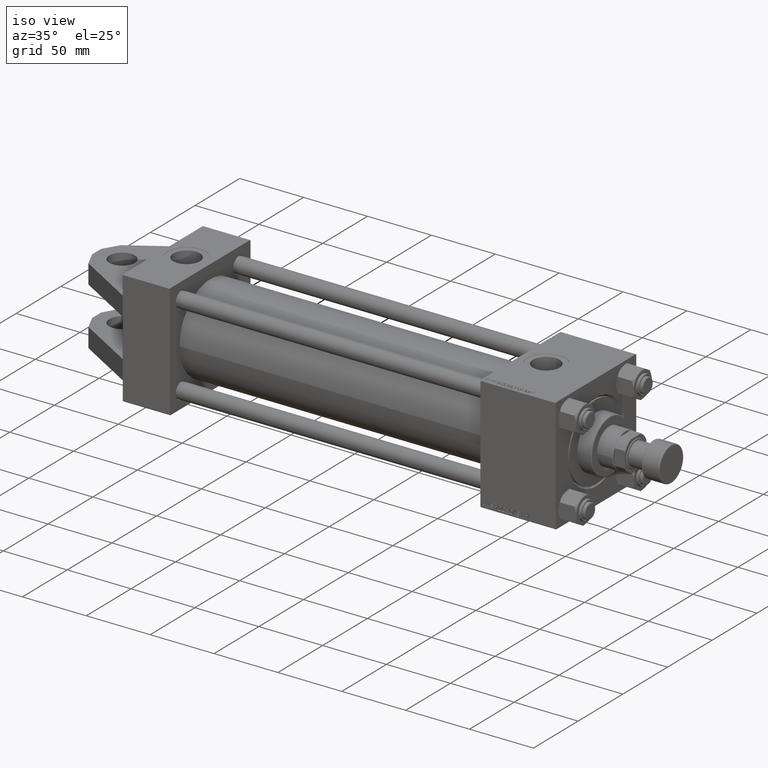
[diagram: clean part render]
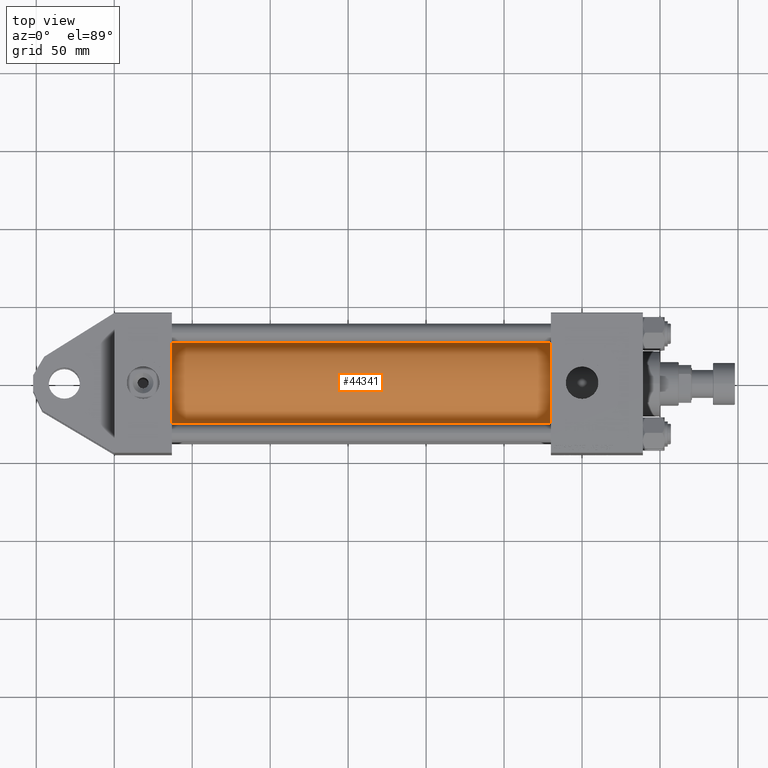
[diagram: tour spotlight — one face highlighted and labeled with its STEP entity id]
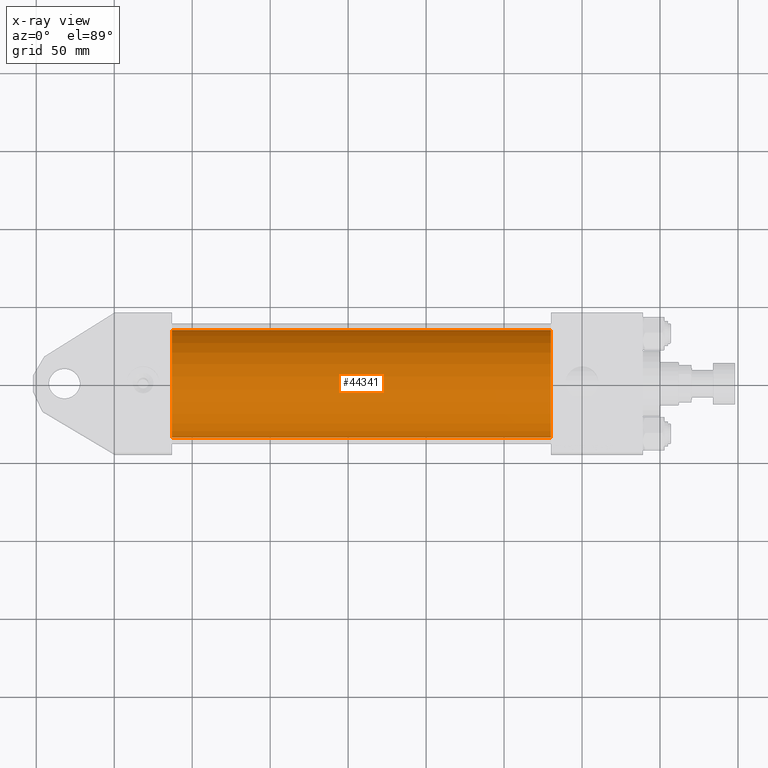
[diagram: x-ray of the same camera — body ghosted, this tour face saturated]
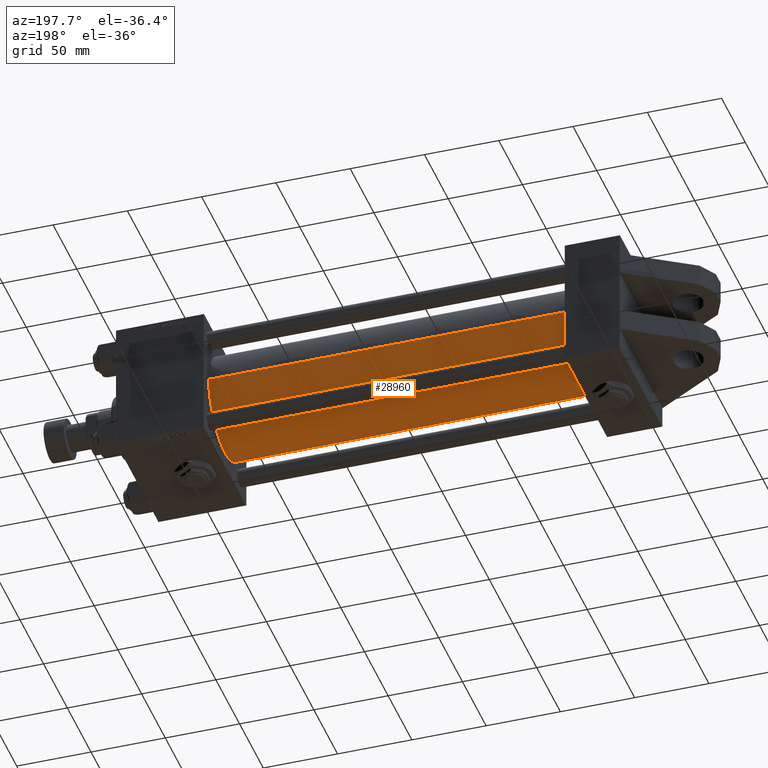
[diagram: tour spotlight — one face highlighted and labeled with its STEP entity id]
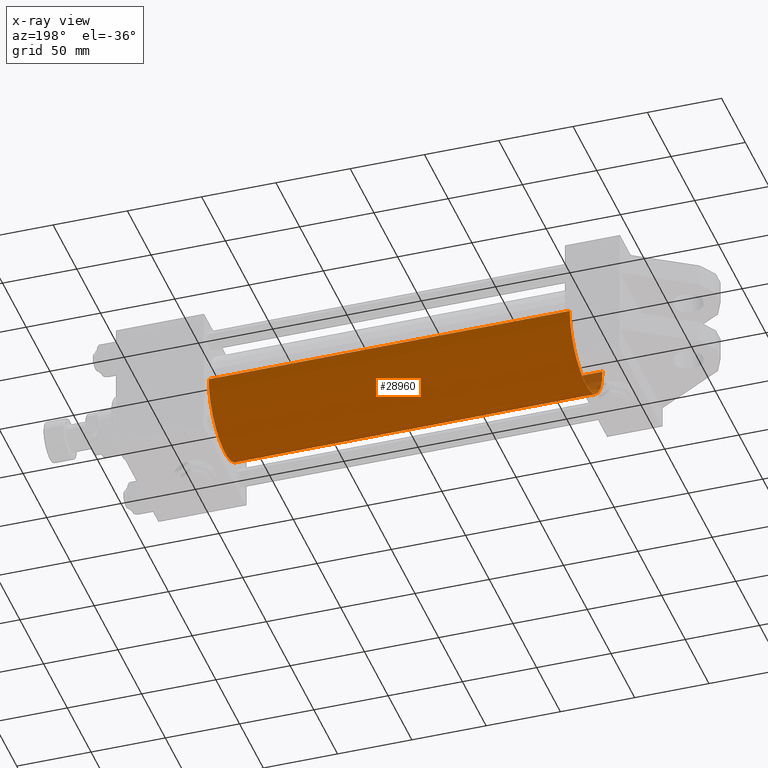
[diagram: x-ray of the same camera — body ghosted, this tour face saturated]
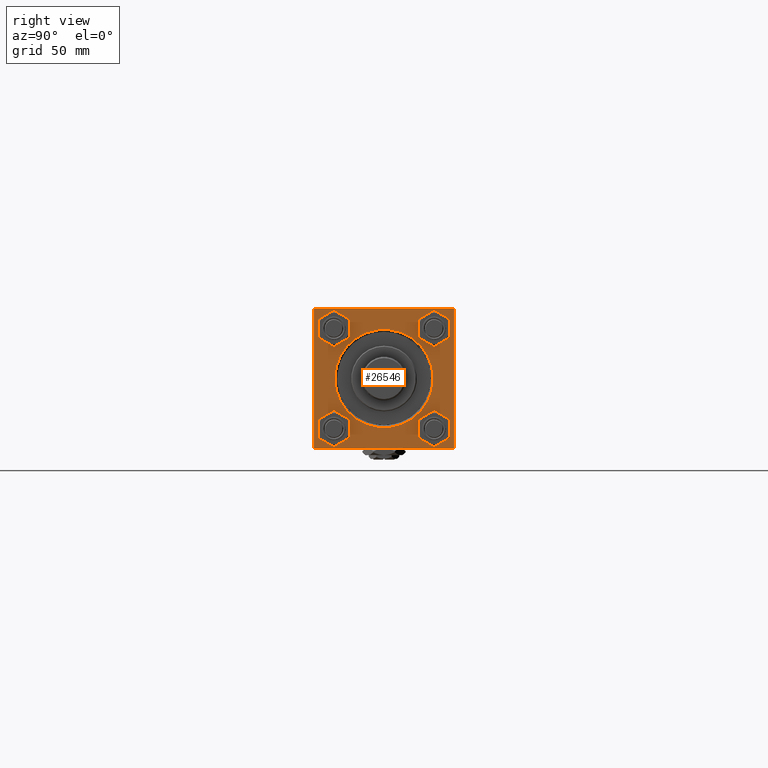
[diagram: tour spotlight — one face highlighted and labeled with its STEP entity id]
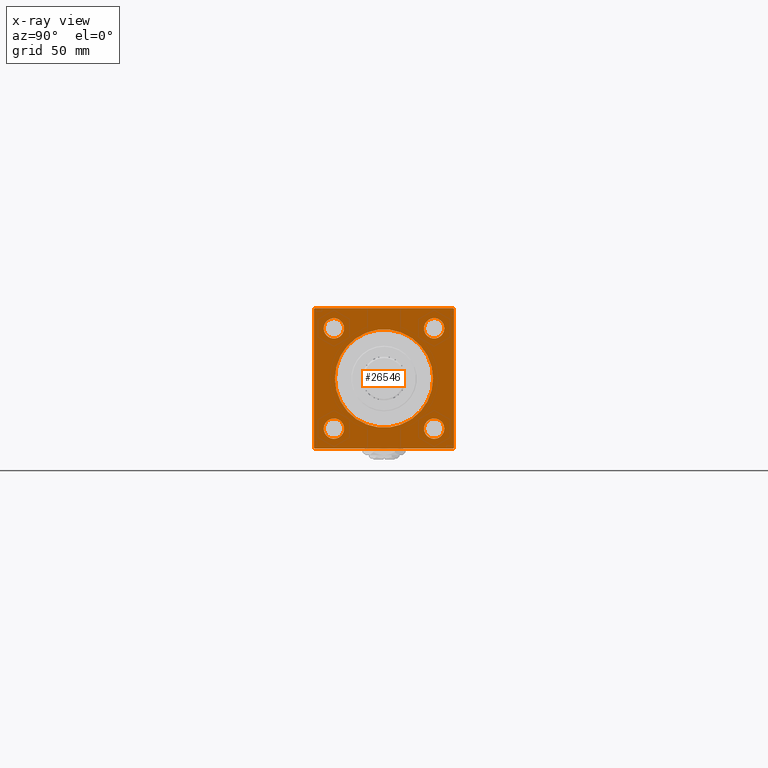
[diagram: x-ray of the same camera — body ghosted, this tour face saturated]
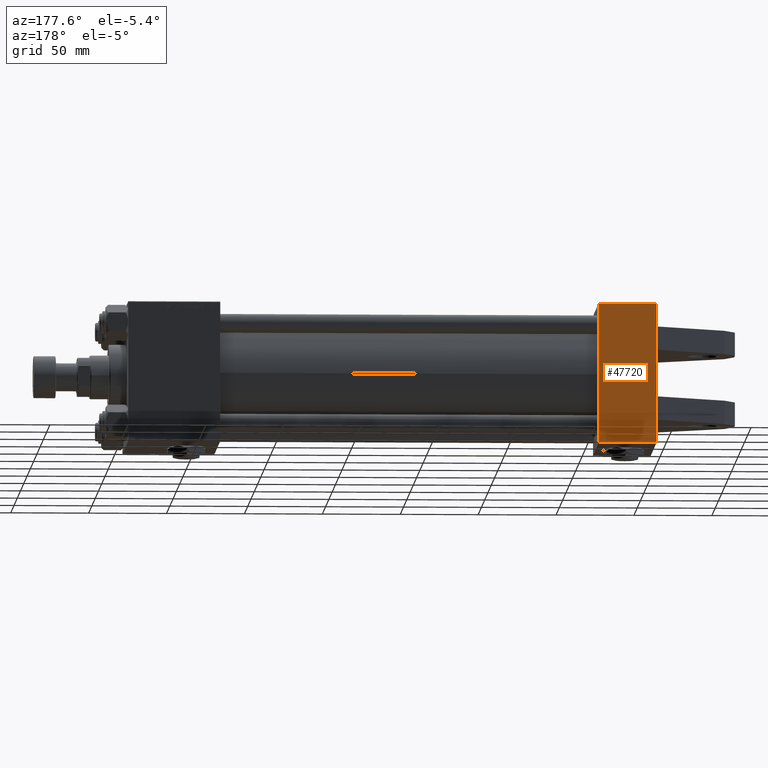
[diagram: tour spotlight — one face highlighted and labeled with its STEP entity id]
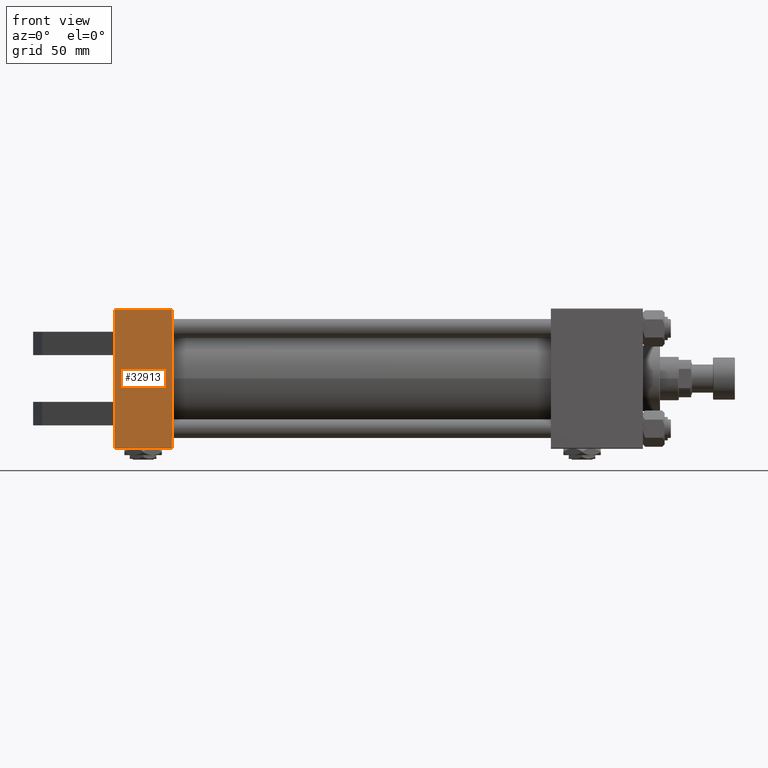
[diagram: tour spotlight — one face highlighted and labeled with its STEP entity id]
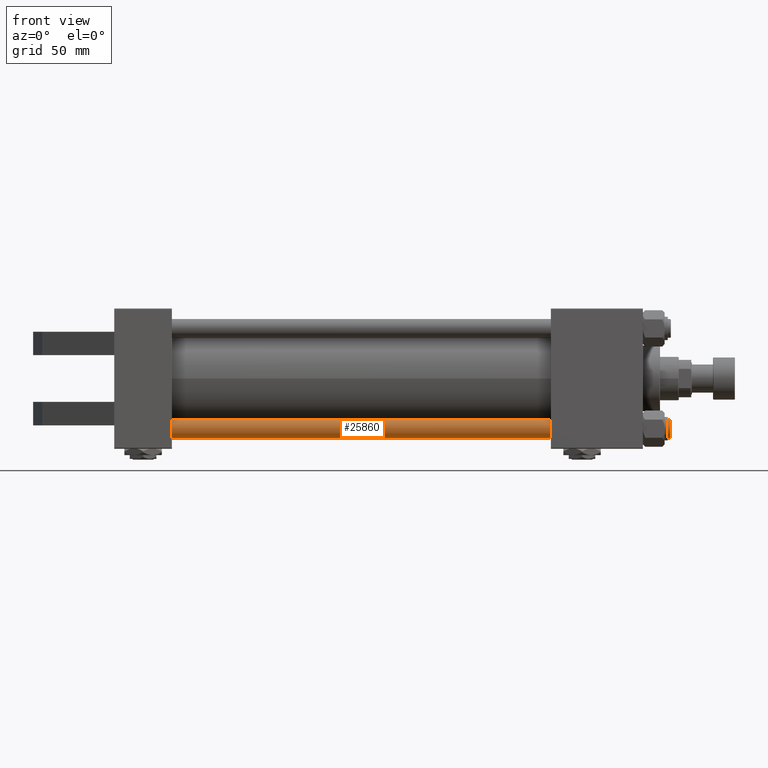
[diagram: tour spotlight — one face highlighted and labeled with its STEP entity id]
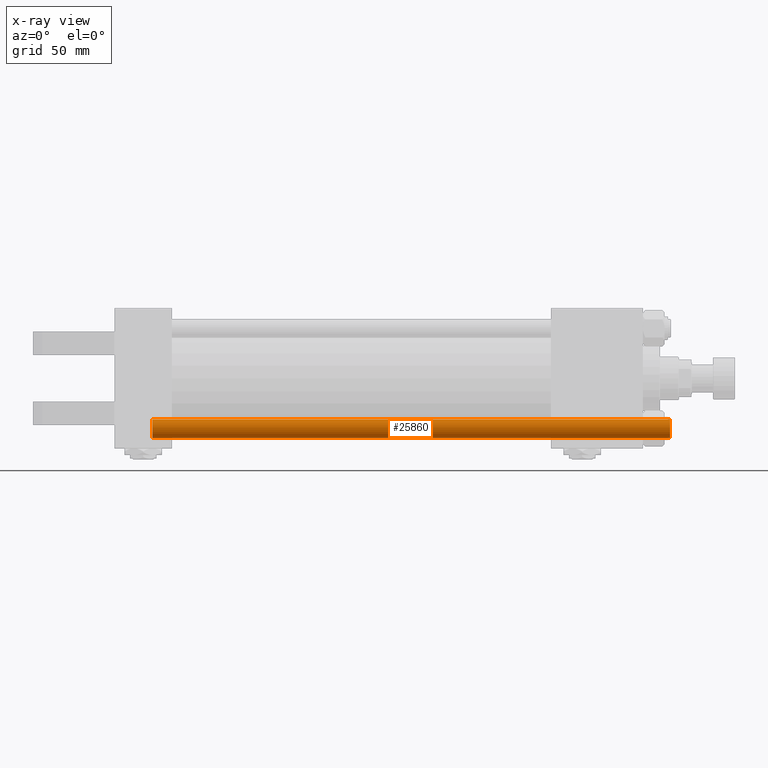
[diagram: x-ray of the same camera — body ghosted, this tour face saturated]
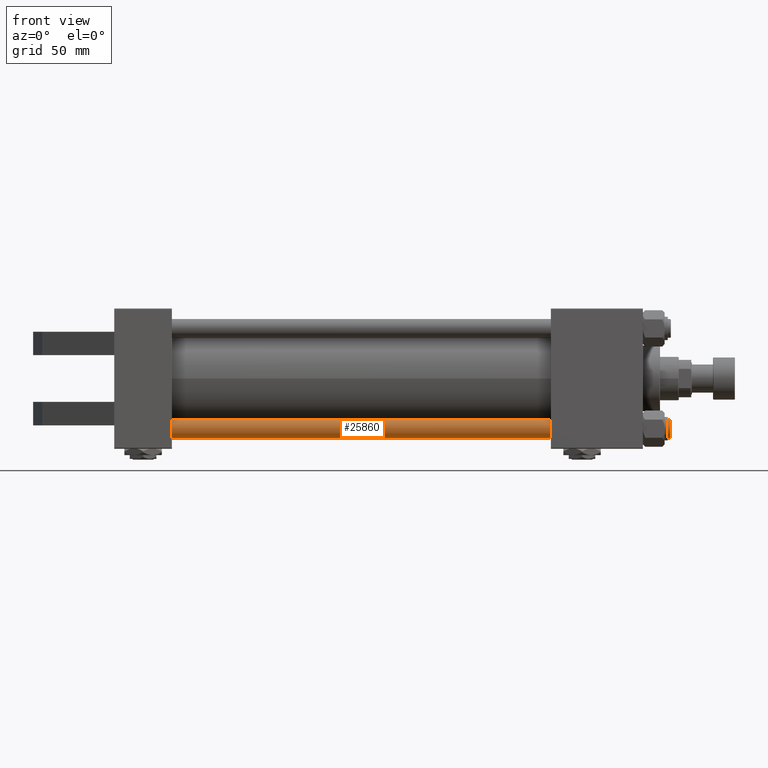
[diagram: tour spotlight — one face highlighted and labeled with its STEP entity id]
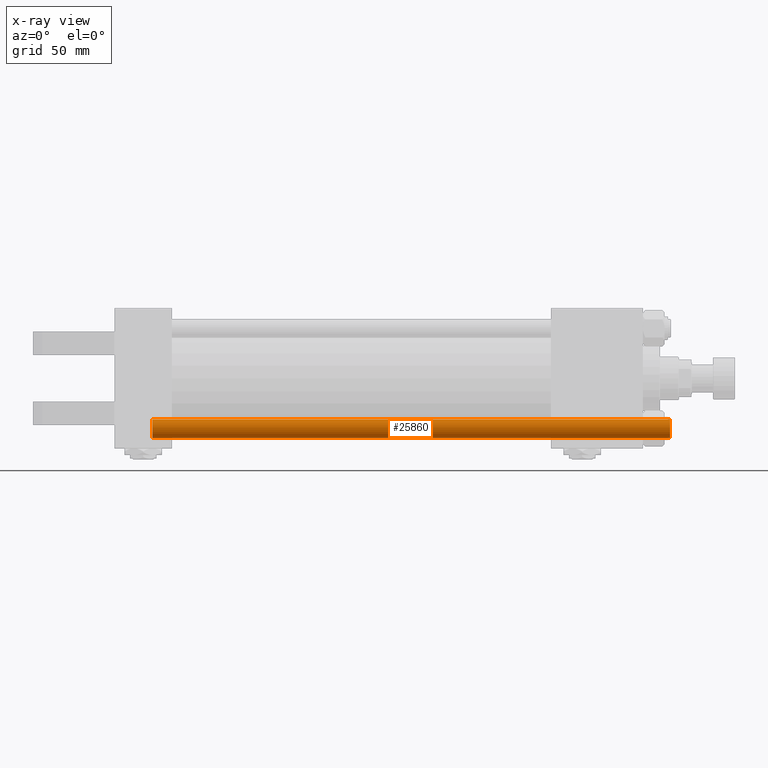
[diagram: x-ray of the same camera — body ghosted, this tour face saturated]
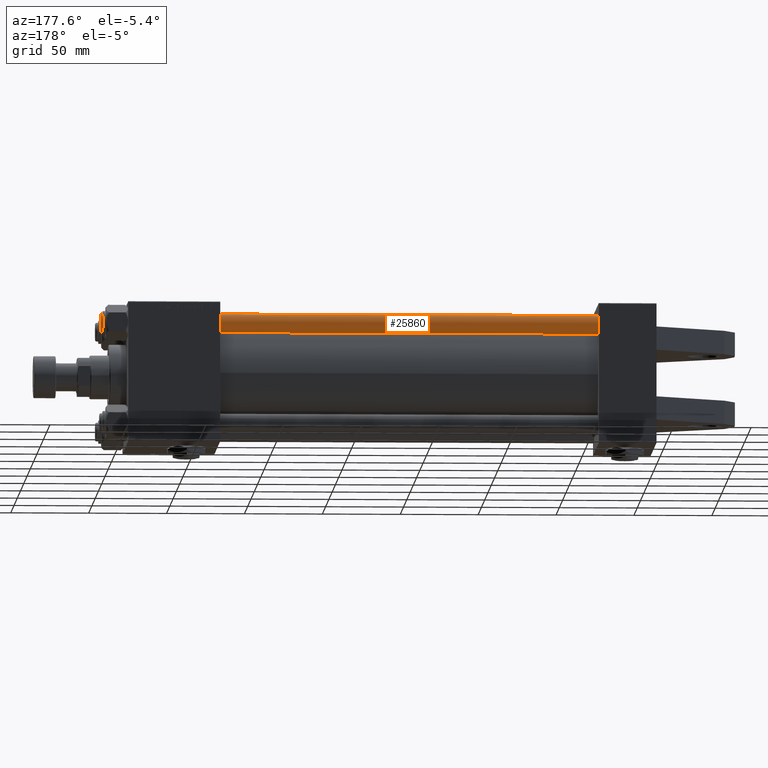
[diagram: tour spotlight — one face highlighted and labeled with its STEP entity id]
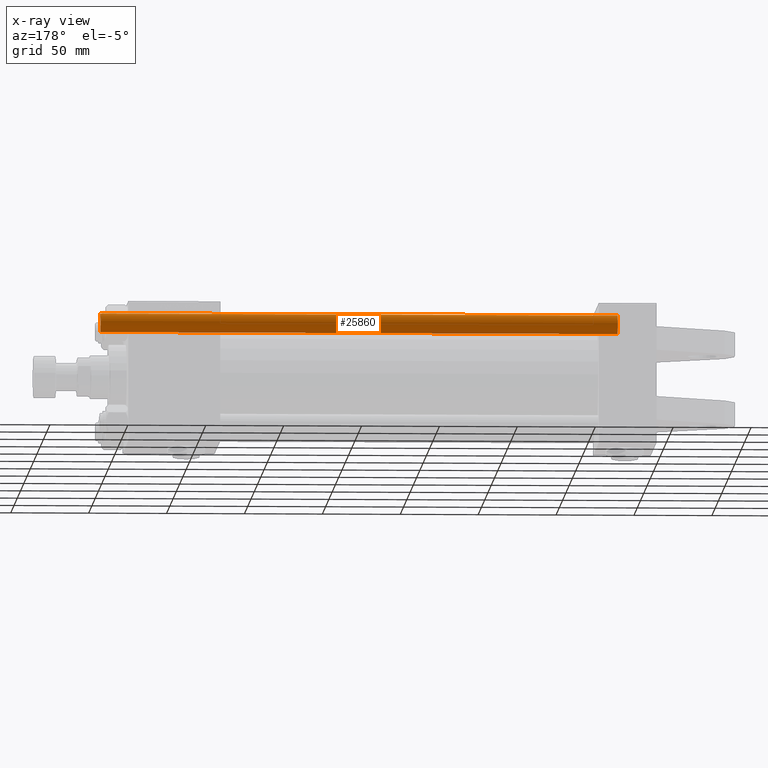
[diagram: x-ray of the same camera — body ghosted, this tour face saturated]
A machine part: a face-by-face anatomy tour. The part has 1244 B-rep faces; the first image is the clean iso view, then the 8 largest visible faces are spotlighted one at a time (largest first), each with its STEP entity span.

Face 1 — top view, entity #44341. An x-ray twin of the same camera follows (body ghosted, this face saturated) — the face is partly hidden behind the body. In plain terms, the highlighted cylindrical surface (partial cylindrical patch) has radius 34.5 mm, axis along (-1, -0, 0).
Definition (entity closure, byte-faithful):
#3482 = VERTEX_POINT ( 'NONE', #18114 ) ;
#3708 = VERTEX_POINT ( 'NONE', #27260 ) ;
#3779 = ORIENTED_EDGE ( 'NONE', *, *, #27665, .F. ) ;
#4818 = AXIS2_PLACEMENT_3D ( 'NONE', #40184, #24339, #32520 ) ;
#6097 = DIRECTION ( 'NONE',  ( -1.000000000000000000, -0.000000000000000000, -0.000000000000000000 ) ) ;
#7559 = VERTEX_POINT ( 'NONE', #33686 ) ;
#11442 = DIRECTION ( 'NONE',  ( 0.000000000000000000, 0.000000000000000000, 1.000000000000000000 ) ) ;
#12547 = DIRECTION ( 'NONE',  ( 0.000000000000000000, 0.000000000000000000, 1.000000000000000000 ) ) ;
#12804 = CARTESIAN_POINT ( 'NONE',  ( 37.00000000000000711, -3.469446951953614189E-15, 0.000000000000000000 ) ) ;
#13603 = DIRECTION ( 'NONE',  ( 1.000000000000000000, -0.000000000000000000, 0.000000000000000000 ) ) ;
#13670 = CIRCLE ( 'NONE', #47404, 34.49999999999999289 ) ;
#14124 = CARTESIAN_POINT ( 'NONE',  ( 279.9999999999999432, -3.469446951953614189E-15, 34.49999999999999289 ) ) ;
#16811 = EDGE_CURVE ( 'NONE', #18519, #7559, #34613, .T. ) ;
#17914 = LINE ( 'NONE', #41939, #32441 ) ;
#18114 = CARTESIAN_POINT ( 'NONE',  ( 279.9999999999999432, 7.555845051047534515E-16, -34.49999999999999289 ) ) ;
#18519 = VERTEX_POINT ( 'NONE', #14124 ) ;
#20151 = FACE_OUTER_BOUND ( 'NONE', #37449, .T. ) ;
#20543 = EDGE_CURVE ( 'NONE', #3482, #3708, #17914, .T. ) ;
#24339 = DIRECTION ( 'NONE',  ( 1.000000000000000000, 0.000000000000000000, 0.000000000000000000 ) ) ;
#25340 = CARTESIAN_POINT ( 'NONE',  ( 279.9999999999999432, -3.469446951953614189E-15, 0.000000000000000000 ) ) ;
#25529 = ORIENTED_EDGE ( 'NONE', *, *, #20543, .F. ) ;
#26357 = DIRECTION ( 'NONE',  ( -1.000000000000000000, -0.000000000000000000, -0.000000000000000000 ) ) ;
#27260 = CARTESIAN_POINT ( 'NONE',  ( 37.00000000000000711, 7.555845051047534515E-16, -34.49999999999999289 ) ) ;
#27665 = EDGE_CURVE ( 'NONE', #18519, #3482, #43632, .T. ) ;
#29825 = VECTOR ( 'NONE', #6097, 1000.000000000000000 ) ;
#32441 = VECTOR ( 'NONE', #26357, 1000.000000000000000 ) ;
#32520 = DIRECTION ( 'NONE',  ( 0.000000000000000000, 0.000000000000000000, -1.000000000000000000 ) ) ;
#32810 = ORIENTED_EDGE ( 'NONE', *, *, #16811, .T. ) ;
#33686 = CARTESIAN_POINT ( 'NONE',  ( 37.00000000000000711, -3.469446951953614189E-15, 34.49999999999999289 ) ) ;
#34613 = LINE ( 'NONE', #50229, #29825 ) ;
#36247 = DIRECTION ( 'NONE',  ( -1.000000000000000000, -0.000000000000000000, -0.000000000000000000 ) ) ;
#37449 = EDGE_LOOP ( 'NONE', ( #25529, #3779, #32810, #52239 ) ) ;
#38356 = EDGE_CURVE ( 'NONE', #7559, #3708, #13670, .T. ) ;
#40184 = CARTESIAN_POINT ( 'NONE',  ( 279.9999999999999432, -3.469446951953614189E-15, 0.000000000000000000 ) ) ;
#41939 = CARTESIAN_POINT ( 'NONE',  ( 279.9999999999999432, 7.555845051047534515E-16, -34.49999999999999289 ) ) ;
#43284 = AXIS2_PLACEMENT_3D ( 'NONE', #25340, #36247, #11442 ) ;
#43632 = CIRCLE ( 'NONE', #4818, 34.49999999999999289 ) ;
#44341 = ADVANCED_FACE ( 'NONE', ( #20151 ), #47631, .T. ) ;
#47404 = AXIS2_PLACEMENT_3D ( 'NONE', #12804, #13603, #12547 ) ;
#47631 = CYLINDRICAL_SURFACE ( 'NONE', #43284, 34.49999999999999289 ) ;
#50229 = CARTESIAN_POINT ( 'NONE',  ( 279.9999999999999432, -3.469446951953614189E-15, 34.49999999999999289 ) ) ;
#52239 = ORIENTED_EDGE ( 'NONE', *, *, #38356, .T. ) ;

Face 2 — auxiliary view, entity #28960. An x-ray twin of the same camera follows (body ghosted, this face saturated) — the face is partly hidden behind the body. In plain terms, the highlighted cylindrical surface (partial cylindrical patch) has radius 34.5 mm, axis along (-1, -0, 0).
Definition (entity closure, byte-faithful):
#550 = ORIENTED_EDGE ( 'NONE', *, *, #20543, .T. ) ;
#984 = CIRCLE ( 'NONE', #45698, 34.49999999999999289 ) ;
#3482 = VERTEX_POINT ( 'NONE', #18114 ) ;
#3654 = DIRECTION ( 'NONE',  ( 0.000000000000000000, 0.000000000000000000, -1.000000000000000000 ) ) ;
#3708 = VERTEX_POINT ( 'NONE', #27260 ) ;
#4926 = DIRECTION ( 'NONE',  ( 1.000000000000000000, -0.000000000000000000, 0.000000000000000000 ) ) ;
#6097 = DIRECTION ( 'NONE',  ( -1.000000000000000000, -0.000000000000000000, -0.000000000000000000 ) ) ;
#7156 = ORIENTED_EDGE ( 'NONE', *, *, #25797, .F. ) ;
#7363 = FACE_OUTER_BOUND ( 'NONE', #29558, .T. ) ;
#7559 = VERTEX_POINT ( 'NONE', #33686 ) ;
#8132 = AXIS2_PLACEMENT_3D ( 'NONE', #47517, #11068, #3654 ) ;
#11068 = DIRECTION ( 'NONE',  ( 1.000000000000000000, 0.000000000000000000, 0.000000000000000000 ) ) ;
#13641 = EDGE_CURVE ( 'NONE', #3708, #7559, #984, .T. ) ;
#14124 = CARTESIAN_POINT ( 'NONE',  ( 279.9999999999999432, -3.469446951953614189E-15, 34.49999999999999289 ) ) ;
#15823 = DIRECTION ( 'NONE',  ( -1.000000000000000000, -0.000000000000000000, -0.000000000000000000 ) ) ;
#16811 = EDGE_CURVE ( 'NONE', #18519, #7559, #34613, .T. ) ;
#17914 = LINE ( 'NONE', #41939, #32441 ) ;
#18114 = CARTESIAN_POINT ( 'NONE',  ( 279.9999999999999432, 7.555845051047534515E-16, -34.49999999999999289 ) ) ;
#18519 = VERTEX_POINT ( 'NONE', #14124 ) ;
#20543 = EDGE_CURVE ( 'NONE', #3482, #3708, #17914, .T. ) ;
#25555 = CARTESIAN_POINT ( 'NONE',  ( 37.00000000000000711, -3.469446951953614189E-15, 0.000000000000000000 ) ) ;
#25797 = EDGE_CURVE ( 'NONE', #3482, #18519, #28392, .T. ) ;
#26357 = DIRECTION ( 'NONE',  ( -1.000000000000000000, -0.000000000000000000, -0.000000000000000000 ) ) ;
#26604 = ORIENTED_EDGE ( 'NONE', *, *, #13641, .T. ) ;
#27260 = CARTESIAN_POINT ( 'NONE',  ( 37.00000000000000711, 7.555845051047534515E-16, -34.49999999999999289 ) ) ;
#28392 = CIRCLE ( 'NONE', #8132, 34.49999999999999289 ) ;
#28960 = ADVANCED_FACE ( 'NONE', ( #7363 ), #40116, .T. ) ;
#29558 = EDGE_LOOP ( 'NONE', ( #7156, #550, #26604, #36155 ) ) ;
#29825 = VECTOR ( 'NONE', #6097, 1000.000000000000000 ) ;
#31049 = AXIS2_PLACEMENT_3D ( 'NONE', #36143, #15823, #31936 ) ;
#31936 = DIRECTION ( 'NONE',  ( 0.000000000000000000, 0.000000000000000000, 1.000000000000000000 ) ) ;
#32441 = VECTOR ( 'NONE', #26357, 1000.000000000000000 ) ;
#33686 = CARTESIAN_POINT ( 'NONE',  ( 37.00000000000000711, -3.469446951953614189E-15, 34.49999999999999289 ) ) ;
#34613 = LINE ( 'NONE', #50229, #29825 ) ;
#36143 = CARTESIAN_POINT ( 'NONE',  ( 279.9999999999999432, -3.469446951953614189E-15, 0.000000000000000000 ) ) ;
#36155 = ORIENTED_EDGE ( 'NONE', *, *, #16811, .F. ) ;
#40116 = CYLINDRICAL_SURFACE ( 'NONE', #31049, 34.49999999999999289 ) ;
#41939 = CARTESIAN_POINT ( 'NONE',  ( 279.9999999999999432, 7.555845051047534515E-16, -34.49999999999999289 ) ) ;
#45359 = DIRECTION ( 'NONE',  ( 0.000000000000000000, 0.000000000000000000, 1.000000000000000000 ) ) ;
#45698 = AXIS2_PLACEMENT_3D ( 'NONE', #25555, #4926, #45359 ) ;
#47517 = CARTESIAN_POINT ( 'NONE',  ( 279.9999999999999432, -3.469446951953614189E-15, 0.000000000000000000 ) ) ;
#50229 = CARTESIAN_POINT ( 'NONE',  ( 279.9999999999999432, -3.469446951953614189E-15, 34.49999999999999289 ) ) ;

Face 3 — right view, entity #26546. An x-ray twin of the same camera follows (body ghosted, this face saturated) — the face is partly hidden behind the body. In plain terms, the highlighted planar face has unit normal (-1, 0, -0).
Definition (entity closure, byte-faithful):
#51 = EDGE_CURVE ( 'NONE', #5466, #9615, #20049, .T. ) ;
#192 = VECTOR ( 'NONE', #8720, 1000.000000000000000 ) ;
#500 = AXIS2_PLACEMENT_3D ( 'NONE', #37976, #33765, #10244 ) ;
#724 = CIRCLE ( 'NONE', #10854, 6.500000000000061284 ) ;
#1373 = EDGE_CURVE ( 'NONE', #43788, #47814, #3004, .T. ) ;
#1828 = LINE ( 'NONE', #10281, #39635 ) ;
#2217 = EDGE_LOOP ( 'NONE', ( #13444, #45899 ) ) ;
#2692 = DIRECTION ( 'NONE',  ( -1.000000000000000000, -0.000000000000000000, -0.000000000000000000 ) ) ;
#2802 = CARTESIAN_POINT ( 'NONE',  ( 338.9999999999999432, 0.000000000000000000, 0.000000000000000000 ) ) ;
#2966 = AXIS2_PLACEMENT_3D ( 'NONE', #39633, #43093, #39122 ) ;
#3004 = LINE ( 'NONE', #47393, #24313 ) ;
#3060 = EDGE_CURVE ( 'NONE', #43270, #36911, #724, .T. ) ;
#3368 = CIRCLE ( 'NONE', #8427, 6.500000000000061284 ) ;
#3479 = DIRECTION ( 'NONE',  ( -0.000000000000000000, 0.7071067811865474617, 0.7071067811865474617 ) ) ;
#3750 = ORIENTED_EDGE ( 'NONE', *, *, #51, .T. ) ;
#3840 = EDGE_LOOP ( 'NONE', ( #43146, #28292, #7345, #20959, #44972, #36309, #22176, #22880 ) ) ;
#5283 = FACE_BOUND ( 'NONE', #32962, .T. ) ;
#5466 = VERTEX_POINT ( 'NONE', #48989 ) ;
#5743 = EDGE_CURVE ( 'NONE', #45613, #14040, #3368, .T. ) ;
#5839 = VERTEX_POINT ( 'NONE', #39426 ) ;
#5864 = LINE ( 'NONE', #21464, #38471 ) ;
#6091 = AXIS2_PLACEMENT_3D ( 'NONE', #8252, #31513, #31249 ) ;
#6448 = EDGE_CURVE ( 'NONE', #47814, #20143, #1828, .T. ) ;
#6648 = LINE ( 'NONE', #38347, #34768 ) ;
#6918 = DIRECTION ( 'NONE',  ( 0.000000000000000000, 0.000000000000000000, 1.000000000000000000 ) ) ;
#7312 = AXIS2_PLACEMENT_3D ( 'NONE', #39711, #11464, #51888 ) ;
#7345 = ORIENTED_EDGE ( 'NONE', *, *, #39464, .F. ) ;
#7467 = VERTEX_POINT ( 'NONE', #37366 ) ;
#8252 = CARTESIAN_POINT ( 'NONE',  ( 338.9999999999999432, 32.14999999999999147, 32.15000000000000568 ) ) ;
#8427 = AXIS2_PLACEMENT_3D ( 'NONE', #19108, #47122, #30754 ) ;
#8720 = DIRECTION ( 'NONE',  ( 0.000000000000000000, -1.000000000000000000, -1.541976423090495140E-16 ) ) ;
#9615 = VERTEX_POINT ( 'NONE', #43996 ) ;
#10244 = DIRECTION ( 'NONE',  ( 0.000000000000000000, 0.000000000000000000, 1.000000000000000000 ) ) ;
#10281 = CARTESIAN_POINT ( 'NONE',  ( 338.9999999999999432, -44.49999999999998579, -45.00000000000000000 ) ) ;
#10409 = VERTEX_POINT ( 'NONE', #19122 ) ;
#10413 = CIRCLE ( 'NONE', #46696, 6.500000000000054179 ) ;
#10854 = AXIS2_PLACEMENT_3D ( 'NONE', #40628, #40111, #19778 ) ;
#10945 = DIRECTION ( 'NONE',  ( 0.000000000000000000, 7.709882115452478166E-17, -1.000000000000000000 ) ) ;
#11422 = CIRCLE ( 'NONE', #40932, 6.500000000000061284 ) ;
#11464 = DIRECTION ( 'NONE',  ( -1.000000000000000000, 0.000000000000000000, -0.000000000000000000 ) ) ;
#11846 = DIRECTION ( 'NONE',  ( 0.000000000000000000, 0.000000000000000000, 1.000000000000000000 ) ) ;
#12246 = FACE_BOUND ( 'NONE', #41902, .T. ) ;
#12679 = CARTESIAN_POINT ( 'NONE',  ( 338.9999999999999432, 45.00000000000001421, 45.00000000000000000 ) ) ;
#12943 = EDGE_CURVE ( 'NONE', #45267, #7467, #35261, .T. ) ;
#13444 = ORIENTED_EDGE ( 'NONE', *, *, #50022, .T. ) ;
#14040 = VERTEX_POINT ( 'NONE', #27287 ) ;
#14596 = ORIENTED_EDGE ( 'NONE', *, *, #3060, .T. ) ;
#14845 = EDGE_CURVE ( 'NONE', #14040, #45613, #45733, .T. ) ;
#14847 = VERTEX_POINT ( 'NONE', #35985 ) ;
#15496 = EDGE_LOOP ( 'NONE', ( #27771, #3750 ) ) ;
#15604 = ORIENTED_EDGE ( 'NONE', *, *, #50844, .T. ) ;
#16089 = DIRECTION ( 'NONE',  ( 0.000000000000000000, 0.000000000000000000, 1.000000000000000000 ) ) ;
#16114 = EDGE_CURVE ( 'NONE', #14847, #21921, #48873, .T. ) ;
#17450 = FACE_BOUND ( 'NONE', #15496, .T. ) ;
#18820 = CARTESIAN_POINT ( 'NONE',  ( 338.9999999999999432, 32.14999999999999147, 25.64999999999994529 ) ) ;
#19108 = CARTESIAN_POINT ( 'NONE',  ( 338.9999999999999432, 32.14999999999999147, 32.15000000000000568 ) ) ;
#19122 = CARTESIAN_POINT ( 'NONE',  ( 338.9999999999999432, -32.15000000000001279, -38.65000000000006963 ) ) ;
#19325 = LINE ( 'NONE', #23819, #46057 ) ;
#19358 = CARTESIAN_POINT ( 'NONE',  ( 338.9999999999999432, -32.14999999999999147, 25.64999999999993108 ) ) ;
#19506 = VECTOR ( 'NONE', #28141, 1000.000000000000000 ) ;
#19778 = DIRECTION ( 'NONE',  ( 0.000000000000000000, 0.000000000000000000, 1.000000000000000000 ) ) ;
#19790 = CARTESIAN_POINT ( 'NONE',  ( 338.9999999999999432, 32.14999999999999147, -25.64999999999994884 ) ) ;
#20049 = CIRCLE ( 'NONE', #26812, 31.50000000000013856 ) ;
#20143 = VERTEX_POINT ( 'NONE', #42331 ) ;
#20405 = CIRCLE ( 'NONE', #48234, 31.50000000000013856 ) ;
#20437 = VECTOR ( 'NONE', #3479, 1000.000000000000114 ) ;
#20959 = ORIENTED_EDGE ( 'NONE', *, *, #42415, .T. ) ;
#21406 = FACE_BOUND ( 'NONE', #44339, .T. ) ;
#21464 = CARTESIAN_POINT ( 'NONE',  ( 338.9999999999999432, -45.00000000000000000, 44.50000000000004263 ) ) ;
#21921 = VERTEX_POINT ( 'NONE', #37594 ) ;
#22176 = ORIENTED_EDGE ( 'NONE', *, *, #16114, .T. ) ;
#22846 = ORIENTED_EDGE ( 'NONE', *, *, #52270, .T. ) ;
#22880 = ORIENTED_EDGE ( 'NONE', *, *, #24196, .T. ) ;
#23819 = CARTESIAN_POINT ( 'NONE',  ( 338.9999999999999432, 44.49999999999995737, 45.00000000000000000 ) ) ;
#24196 = EDGE_CURVE ( 'NONE', #21921, #43788, #5864, .T. ) ;
#24265 = CARTESIAN_POINT ( 'NONE',  ( 338.9999999999999432, -32.15000000000001279, -32.15000000000000568 ) ) ;
#24313 = VECTOR ( 'NONE', #10945, 1000.000000000000000 ) ;
#25315 = CARTESIAN_POINT ( 'NONE',  ( 338.9999999999999432, -44.99999999999999289, -44.49999999999997158 ) ) ;
#25349 = VERTEX_POINT ( 'NONE', #26731 ) ;
#25804 = CIRCLE ( 'NONE', #26664, 6.500000000000061284 ) ;
#26546 = ADVANCED_FACE ( 'NONE', ( #5283, #36270, #12246, #21406, #17450, #44468 ), #32573, .F. ) ;
#26656 = CARTESIAN_POINT ( 'NONE',  ( 338.9999999999999432, 0.000000000000000000, 0.000000000000000000 ) ) ;
#26664 = AXIS2_PLACEMENT_3D ( 'NONE', #24265, #49092, #11846 ) ;
#26731 = CARTESIAN_POINT ( 'NONE',  ( 338.9999999999999432, 44.50000000000001421, -45.00000000000000000 ) ) ;
#26812 = AXIS2_PLACEMENT_3D ( 'NONE', #2802, #35277, #43470 ) ;
#26838 = VERTEX_POINT ( 'NONE', #41147 ) ;
#26904 = CARTESIAN_POINT ( 'NONE',  ( 338.9999999999999432, -45.00000000000000000, 44.50000000000004263 ) ) ;
#27287 = CARTESIAN_POINT ( 'NONE',  ( 338.9999999999999432, 32.14999999999999147, 38.65000000000007674 ) ) ;
#27498 = ORIENTED_EDGE ( 'NONE', *, *, #14845, .T. ) ;
#27771 = ORIENTED_EDGE ( 'NONE', *, *, #37975, .T. ) ;
#28141 = DIRECTION ( 'NONE',  ( 0.000000000000000000, 0.000000000000000000, -1.000000000000000000 ) ) ;
#28292 = ORIENTED_EDGE ( 'NONE', *, *, #6448, .T. ) ;
#30175 = DIRECTION ( 'NONE',  ( -0.000000000000000000, -0.7071067811865474617, -0.7071067811865474617 ) ) ;
#30622 = DIRECTION ( 'NONE',  ( -1.000000000000000000, -0.000000000000000000, -0.000000000000000000 ) ) ;
#30754 = DIRECTION ( 'NONE',  ( 0.000000000000000000, 0.000000000000000000, 1.000000000000000000 ) ) ;
#30847 = CIRCLE ( 'NONE', #2966, 6.500000000000054179 ) ;
#31249 = DIRECTION ( 'NONE',  ( 0.000000000000000000, 0.000000000000000000, 1.000000000000000000 ) ) ;
#31513 = DIRECTION ( 'NONE',  ( -1.000000000000000000, -0.000000000000000000, -0.000000000000000000 ) ) ;
#32573 = PLANE ( 'NONE',  #7312 ) ;
#32962 = EDGE_LOOP ( 'NONE', ( #34890, #15604 ) ) ;
#33765 = DIRECTION ( 'NONE',  ( -1.000000000000000000, -0.000000000000000000, -0.000000000000000000 ) ) ;
#34139 = DIRECTION ( 'NONE',  ( 0.000000000000000000, -1.000000000000000000, 0.000000000000000000 ) ) ;
#34319 = DIRECTION ( 'NONE',  ( 0.000000000000000000, 0.7071067811865525687, -0.7071067811865425767 ) ) ;
#34397 = ORIENTED_EDGE ( 'NONE', *, *, #5743, .T. ) ;
#34768 = VECTOR ( 'NONE', #34139, 1000.000000000000000 ) ;
#34890 = ORIENTED_EDGE ( 'NONE', *, *, #51317, .T. ) ;
#35261 = LINE ( 'NONE', #47686, #19506 ) ;
#35277 = DIRECTION ( 'NONE',  ( -1.000000000000000000, -0.000000000000000000, -0.000000000000000000 ) ) ;
#35985 = CARTESIAN_POINT ( 'NONE',  ( 338.9999999999999432, 44.49999999999995737, 45.00000000000000000 ) ) ;
#36213 = DIRECTION ( 'NONE',  ( 0.000000000000000000, -0.7071067811865474617, 0.7071067811865474617 ) ) ;
#36270 = FACE_BOUND ( 'NONE', #2217, .T. ) ;
#36309 = ORIENTED_EDGE ( 'NONE', *, *, #51720, .T. ) ;
#36911 = VERTEX_POINT ( 'NONE', #19358 ) ;
#37366 = CARTESIAN_POINT ( 'NONE',  ( 338.9999999999999432, 45.00000000000001421, -44.49999999999997158 ) ) ;
#37594 = CARTESIAN_POINT ( 'NONE',  ( 338.9999999999999432, -44.50000000000002842, 44.99999999999998579 ) ) ;
#37975 = EDGE_CURVE ( 'NONE', #9615, #5466, #20405, .T. ) ;
#37976 = CARTESIAN_POINT ( 'NONE',  ( 338.9999999999999432, -32.14999999999999147, 32.14999999999999147 ) ) ;
#38347 = CARTESIAN_POINT ( 'NONE',  ( 338.9999999999999432, 45.00000000000001421, -45.00000000000000000 ) ) ;
#38471 = VECTOR ( 'NONE', #30175, 1000.000000000000114 ) ;
#39122 = DIRECTION ( 'NONE',  ( 0.000000000000000000, 0.000000000000000000, 1.000000000000000000 ) ) ;
#39426 = CARTESIAN_POINT ( 'NONE',  ( 338.9999999999999432, -32.15000000000001279, -25.64999999999994529 ) ) ;
#39464 = EDGE_CURVE ( 'NONE', #25349, #20143, #6648, .T. ) ;
#39633 = CARTESIAN_POINT ( 'NONE',  ( 338.9999999999999432, 32.14999999999999147, -32.15000000000000568 ) ) ;
#39635 = VECTOR ( 'NONE', #34319, 999.9999999999998863 ) ;
#39711 = CARTESIAN_POINT ( 'NONE',  ( 338.9999999999999432, 0.000000000000000000, 0.000000000000000000 ) ) ;
#40111 = DIRECTION ( 'NONE',  ( -1.000000000000000000, -0.000000000000000000, -0.000000000000000000 ) ) ;
#40125 = DIRECTION ( 'NONE',  ( -1.000000000000000000, -0.000000000000000000, -0.000000000000000000 ) ) ;
#40628 = CARTESIAN_POINT ( 'NONE',  ( 338.9999999999999432, -32.14999999999999147, 32.14999999999999147 ) ) ;
#40932 = AXIS2_PLACEMENT_3D ( 'NONE', #43102, #2692, #6918 ) ;
#41147 = CARTESIAN_POINT ( 'NONE',  ( 338.9999999999999432, 32.14999999999999147, -38.65000000000006253 ) ) ;
#41902 = EDGE_LOOP ( 'NONE', ( #34397, #27498 ) ) ;
#42331 = CARTESIAN_POINT ( 'NONE',  ( 338.9999999999999432, -44.49999999999995737, -45.00000000000000000 ) ) ;
#42415 = EDGE_CURVE ( 'NONE', #25349, #7467, #47608, .T. ) ;
#42762 = DIRECTION ( 'NONE',  ( 0.000000000000000000, 0.000000000000000000, 1.000000000000000000 ) ) ;
#43093 = DIRECTION ( 'NONE',  ( -1.000000000000000000, -0.000000000000000000, -0.000000000000000000 ) ) ;
#43102 = CARTESIAN_POINT ( 'NONE',  ( 338.9999999999999432, -32.15000000000001279, -32.15000000000000568 ) ) ;
#43121 = CARTESIAN_POINT ( 'NONE',  ( 338.9999999999999432, 45.00000000000001421, -44.50000000000000000 ) ) ;
#43146 = ORIENTED_EDGE ( 'NONE', *, *, #1373, .T. ) ;
#43270 = VERTEX_POINT ( 'NONE', #49976 ) ;
#43470 = DIRECTION ( 'NONE',  ( 0.000000000000000000, 0.000000000000000000, 1.000000000000000000 ) ) ;
#43537 = CIRCLE ( 'NONE', #500, 6.500000000000061284 ) ;
#43788 = VERTEX_POINT ( 'NONE', #26904 ) ;
#43996 = CARTESIAN_POINT ( 'NONE',  ( 338.9999999999999432, 0.000000000000000000, -31.50000000000013856 ) ) ;
#44339 = EDGE_LOOP ( 'NONE', ( #22846, #14596 ) ) ;
#44468 = FACE_OUTER_BOUND ( 'NONE', #3840, .T. ) ;
#44972 = ORIENTED_EDGE ( 'NONE', *, *, #12943, .F. ) ;
#45267 = VERTEX_POINT ( 'NONE', #46639 ) ;
#45613 = VERTEX_POINT ( 'NONE', #18820 ) ;
#45733 = CIRCLE ( 'NONE', #6091, 6.500000000000061284 ) ;
#45899 = ORIENTED_EDGE ( 'NONE', *, *, #46607, .T. ) ;
#46057 = VECTOR ( 'NONE', #36213, 1000.000000000000114 ) ;
#46607 = EDGE_CURVE ( 'NONE', #47627, #26838, #10413, .T. ) ;
#46639 = CARTESIAN_POINT ( 'NONE',  ( 338.9999999999999432, 45.00000000000001421, 44.49999999999994316 ) ) ;
#46696 = AXIS2_PLACEMENT_3D ( 'NONE', #52293, #40125, #16089 ) ;
#47122 = DIRECTION ( 'NONE',  ( -1.000000000000000000, -0.000000000000000000, -0.000000000000000000 ) ) ;
#47393 = CARTESIAN_POINT ( 'NONE',  ( 338.9999999999999432, -45.00000000000000000, 44.99999999999998579 ) ) ;
#47608 = LINE ( 'NONE', #43121, #20437 ) ;
#47627 = VERTEX_POINT ( 'NONE', #19790 ) ;
#47686 = CARTESIAN_POINT ( 'NONE',  ( 338.9999999999999432, 45.00000000000001421, 45.00000000000000000 ) ) ;
#47814 = VERTEX_POINT ( 'NONE', #25315 ) ;
#48234 = AXIS2_PLACEMENT_3D ( 'NONE', #26656, #30622, #42762 ) ;
#48873 = LINE ( 'NONE', #12679, #192 ) ;
#48989 = CARTESIAN_POINT ( 'NONE',  ( 338.9999999999999432, 3.857637417314179255E-15, 31.50000000000013856 ) ) ;
#49092 = DIRECTION ( 'NONE',  ( -1.000000000000000000, -0.000000000000000000, -0.000000000000000000 ) ) ;
#49976 = CARTESIAN_POINT ( 'NONE',  ( 338.9999999999999432, -32.14999999999999147, 38.65000000000006253 ) ) ;
#50022 = EDGE_CURVE ( 'NONE', #26838, #47627, #30847, .T. ) ;
#50844 = EDGE_CURVE ( 'NONE', #5839, #10409, #11422, .T. ) ;
#51317 = EDGE_CURVE ( 'NONE', #10409, #5839, #25804, .T. ) ;
#51720 = EDGE_CURVE ( 'NONE', #45267, #14847, #19325, .T. ) ;
#51888 = DIRECTION ( 'NONE',  ( -0.000000000000000000, 0.000000000000000000, 1.000000000000000000 ) ) ;
#52270 = EDGE_CURVE ( 'NONE', #36911, #43270, #43537, .T. ) ;
#52293 = CARTESIAN_POINT ( 'NONE',  ( 338.9999999999999432, 32.14999999999999147, -32.15000000000000568 ) ) ;

Face 4 — auxiliary view, entity #47720. In plain terms, the highlighted planar face has unit normal (0, -1, -0).
Definition (entity closure, byte-faithful):
#231 = ORIENTED_EDGE ( 'NONE', *, *, #36766, .T. ) ;
#694 = CARTESIAN_POINT ( 'NONE',  ( 37.00000000000000000, 44.99999999999998579, 45.00000000000001421 ) ) ;
#1002 = CARTESIAN_POINT ( 'NONE',  ( 37.00000000000000000, 44.99999999999998579, 45.00000000000001421 ) ) ;
#1026 = VERTEX_POINT ( 'NONE', #31406 ) ;
#1193 = EDGE_CURVE ( 'NONE', #37771, #42506, #27700, .T. ) ;
#1271 = FACE_OUTER_BOUND ( 'NONE', #6234, .T. ) ;
#1597 = DIRECTION ( 'NONE',  ( 0.000000000000000000, -1.000000000000000000, -1.541976423090495387E-16 ) ) ;
#1953 = LINE ( 'NONE', #18338, #7685 ) ;
#2190 = CARTESIAN_POINT ( 'NONE',  ( 0.000000000000000000, 30.00000000000000355, 45.00000000000001421 ) ) ;
#3025 = ORIENTED_EDGE ( 'NONE', *, *, #51358, .T. ) ;
#3807 = CARTESIAN_POINT ( 'NONE',  ( 0.000000000000000000, -44.49999999999995737, 45.00000000000000000 ) ) ;
#3836 = VECTOR ( 'NONE', #29672, 1000.000000000000000 ) ;
#3934 = EDGE_CURVE ( 'NONE', #50499, #42292, #25649, .T. ) ;
#4290 = ORIENTED_EDGE ( 'NONE', *, *, #3934, .T. ) ;
#4960 = DIRECTION ( 'NONE',  ( 0.000000000000000000, 1.541976423090495633E-16, -1.000000000000000000 ) ) ;
#5781 = VERTEX_POINT ( 'NONE', #28341 ) ;
#6234 = EDGE_LOOP ( 'NONE', ( #4290, #231, #39113, #20259, #45815, #3025, #29246, #50013 ) ) ;
#7685 = VECTOR ( 'NONE', #34434, 1000.000000000000000 ) ;
#10643 = LINE ( 'NONE', #22540, #30542 ) ;
#10735 = VERTEX_POINT ( 'NONE', #3807 ) ;
#10815 = VECTOR ( 'NONE', #49279, 1000.000000000000000 ) ;
#10954 = EDGE_CURVE ( 'NONE', #1026, #42506, #10643, .T. ) ;
#13960 = LINE ( 'NONE', #21347, #39259 ) ;
#18338 = CARTESIAN_POINT ( 'NONE',  ( 0.000000000000000000, 30.00000000000000000, 45.00000000000000000 ) ) ;
#18514 = VECTOR ( 'NONE', #1597, 1000.000000000000000 ) ;
#20259 = ORIENTED_EDGE ( 'NONE', *, *, #10954, .F. ) ;
#21347 = CARTESIAN_POINT ( 'NONE',  ( 37.00000000000000000, -44.49999999999998579, 45.00000000000000000 ) ) ;
#22003 = LINE ( 'NONE', #46052, #3836 ) ;
#22316 = EDGE_CURVE ( 'NONE', #5781, #50499, #49380, .T. ) ;
#22540 = CARTESIAN_POINT ( 'NONE',  ( 0.000000000000000000, -30.00000000000000000, 45.00000000000000000 ) ) ;
#23757 = VECTOR ( 'NONE', #40851, 1000.000000000000000 ) ;
#24902 = VECTOR ( 'NONE', #28260, 1000.000000000000000 ) ;
#25051 = DIRECTION ( 'NONE',  ( 0.000000000000000000, 1.000000000000000000, 1.541976423090495633E-16 ) ) ;
#25649 = LINE ( 'NONE', #26167, #18514 ) ;
#26167 = CARTESIAN_POINT ( 'NONE',  ( 0.000000000000000000, 44.99999999999998579, 45.00000000000001421 ) ) ;
#27700 = LINE ( 'NONE', #33421, #10815 ) ;
#28260 = DIRECTION ( 'NONE',  ( -1.000000000000000000, 0.000000000000000000, 0.000000000000000000 ) ) ;
#28341 = CARTESIAN_POINT ( 'NONE',  ( 37.00000000000000000, 44.49999999999998579, 45.00000000000001421 ) ) ;
#28759 = PLANE ( 'NONE',  #29876 ) ;
#29246 = ORIENTED_EDGE ( 'NONE', *, *, #37298, .F. ) ;
#29672 = DIRECTION ( 'NONE',  ( 0.000000000000000000, -1.000000000000000000, -1.541976423090495387E-16 ) ) ;
#29876 = AXIS2_PLACEMENT_3D ( 'NONE', #1002, #4960, #25051 ) ;
#30072 = DIRECTION ( 'NONE',  ( 1.000000000000000000, 0.000000000000000000, 0.000000000000000000 ) ) ;
#30542 = VECTOR ( 'NONE', #34674, 1000.000000000000000 ) ;
#31406 = CARTESIAN_POINT ( 'NONE',  ( 0.000000000000000000, -29.99999999999997158, 45.00000000000000000 ) ) ;
#31648 = VERTEX_POINT ( 'NONE', #34465 ) ;
#31755 = CARTESIAN_POINT ( 'NONE',  ( 0.000000000000000000, -15.00000000000000000, 45.00000000000000000 ) ) ;
#33421 = CARTESIAN_POINT ( 'NONE',  ( 0.000000000000000000, 44.99999999999998579, 45.00000000000001421 ) ) ;
#34434 = DIRECTION ( 'NONE',  ( -0.000000000000000000, -1.000000000000000000, -0.000000000000000000 ) ) ;
#34465 = CARTESIAN_POINT ( 'NONE',  ( 37.00000000000000000, -44.49999999999995737, 45.00000000000000000 ) ) ;
#34674 = DIRECTION ( 'NONE',  ( -0.000000000000000000, 1.000000000000000000, -0.000000000000000000 ) ) ;
#35656 = CARTESIAN_POINT ( 'NONE',  ( 0.000000000000000000, 15.00000000000000711, 45.00000000000000711 ) ) ;
#36766 = EDGE_CURVE ( 'NONE', #42292, #37771, #1953, .T. ) ;
#37298 = EDGE_CURVE ( 'NONE', #5781, #31648, #49051, .T. ) ;
#37771 = VERTEX_POINT ( 'NONE', #35656 ) ;
#39113 = ORIENTED_EDGE ( 'NONE', *, *, #1193, .T. ) ;
#39259 = VECTOR ( 'NONE', #30072, 1000.000000000000000 ) ;
#40851 = DIRECTION ( 'NONE',  ( 0.000000000000000000, -1.000000000000000000, -1.541976423090495387E-16 ) ) ;
#42292 = VERTEX_POINT ( 'NONE', #2190 ) ;
#42506 = VERTEX_POINT ( 'NONE', #31755 ) ;
#45815 = ORIENTED_EDGE ( 'NONE', *, *, #50709, .T. ) ;
#46052 = CARTESIAN_POINT ( 'NONE',  ( 0.000000000000000000, 44.99999999999998579, 45.00000000000001421 ) ) ;
#46636 = CARTESIAN_POINT ( 'NONE',  ( 0.000000000000000000, 44.49999999999998579, 45.00000000000001421 ) ) ;
#47720 = ADVANCED_FACE ( 'NONE', ( #1271 ), #28759, .F. ) ;
#48591 = CARTESIAN_POINT ( 'NONE',  ( 0.000000000000000000, 44.49999999999998579, 45.00000000000001421 ) ) ;
#49051 = LINE ( 'NONE', #694, #23757 ) ;
#49279 = DIRECTION ( 'NONE',  ( 0.000000000000000000, -1.000000000000000000, -1.541976423090495387E-16 ) ) ;
#49380 = LINE ( 'NONE', #48591, #24902 ) ;
#50013 = ORIENTED_EDGE ( 'NONE', *, *, #22316, .T. ) ;
#50499 = VERTEX_POINT ( 'NONE', #46636 ) ;
#50709 = EDGE_CURVE ( 'NONE', #1026, #10735, #22003, .T. ) ;
#51358 = EDGE_CURVE ( 'NONE', #10735, #31648, #13960, .T. ) ;

Face 5 — front view, entity #32913. In plain terms, the highlighted planar face has unit normal (0, -1, -0).
Definition (entity closure, byte-faithful):
#291 = DIRECTION ( 'NONE',  ( 0.000000000000000000, 1.000000000000000000, 1.541976423090495880E-16 ) ) ;
#1451 = LINE ( 'NONE', #24452, #27446 ) ;
#2773 = ORIENTED_EDGE ( 'NONE', *, *, #50377, .F. ) ;
#3741 = CARTESIAN_POINT ( 'NONE',  ( 37.00000000000000000, 44.99999999999998579, -44.99999999999998579 ) ) ;
#4008 = LINE ( 'NONE', #28320, #49062 ) ;
#4269 = VERTEX_POINT ( 'NONE', #27069 ) ;
#6829 = CARTESIAN_POINT ( 'NONE',  ( 0.000000000000000000, -30.00000000000000000, -45.00000000000000000 ) ) ;
#10799 = DIRECTION ( 'NONE',  ( -0.000000000000000000, 1.000000000000000000, -0.000000000000000000 ) ) ;
#12713 = DIRECTION ( 'NONE',  ( 0.000000000000000000, -1.000000000000000000, -1.541976423090495633E-16 ) ) ;
#12810 = VERTEX_POINT ( 'NONE', #21309 ) ;
#15587 = ORIENTED_EDGE ( 'NONE', *, *, #41394, .F. ) ;
#15658 = ORIENTED_EDGE ( 'NONE', *, *, #48374, .F. ) ;
#16286 = VERTEX_POINT ( 'NONE', #23209 ) ;
#16422 = DIRECTION ( 'NONE',  ( 0.000000000000000000, 1.541976423090495880E-16, -1.000000000000000000 ) ) ;
#16535 = CARTESIAN_POINT ( 'NONE',  ( 0.000000000000000000, -15.00000000000000000, -45.00000000000000000 ) ) ;
#17112 = LINE ( 'NONE', #49334, #22038 ) ;
#17151 = EDGE_CURVE ( 'NONE', #37426, #40608, #48264, .T. ) ;
#17551 = DIRECTION ( 'NONE',  ( 1.000000000000000000, 0.000000000000000000, 0.000000000000000000 ) ) ;
#17625 = ORIENTED_EDGE ( 'NONE', *, *, #38033, .T. ) ;
#18203 = ORIENTED_EDGE ( 'NONE', *, *, #17151, .F. ) ;
#19406 = VERTEX_POINT ( 'NONE', #29261 ) ;
#20753 = VERTEX_POINT ( 'NONE', #16535 ) ;
#21309 = CARTESIAN_POINT ( 'NONE',  ( 0.000000000000000000, -30.00000000000000000, -45.00000000000000000 ) ) ;
#22038 = VECTOR ( 'NONE', #37431, 1000.000000000000000 ) ;
#23209 = CARTESIAN_POINT ( 'NONE',  ( 0.000000000000000000, -44.49999999999995737, -45.00000000000000000 ) ) ;
#24452 = CARTESIAN_POINT ( 'NONE',  ( 0.000000000000000000, 44.99999999999998579, -44.99999999999998579 ) ) ;
#24624 = ORIENTED_EDGE ( 'NONE', *, *, #49302, .T. ) ;
#24714 = VECTOR ( 'NONE', #51983, 1000.000000000000000 ) ;
#25388 = CARTESIAN_POINT ( 'NONE',  ( 0.000000000000000000, 44.99999999999998579, -44.99999999999998579 ) ) ;
#25430 = EDGE_CURVE ( 'NONE', #39692, #19406, #34644, .T. ) ;
#25468 = VECTOR ( 'NONE', #10799, 1000.000000000000000 ) ;
#26258 = CARTESIAN_POINT ( 'NONE',  ( 37.00000000000000000, 44.49999999999998579, -44.99999999999998579 ) ) ;
#27069 = CARTESIAN_POINT ( 'NONE',  ( 0.000000000000000000, 44.49999999999998579, -44.99999999999998579 ) ) ;
#27446 = VECTOR ( 'NONE', #40816, 1000.000000000000000 ) ;
#27876 = CARTESIAN_POINT ( 'NONE',  ( 0.000000000000000000, 30.00000000000000000, -45.00000000000000000 ) ) ;
#28320 = CARTESIAN_POINT ( 'NONE',  ( 0.000000000000000000, 44.99999999999998579, -44.99999999999998579 ) ) ;
#28397 = EDGE_LOOP ( 'NONE', ( #15658, #24624, #41645, #28611, #15587, #17625, #2773, #18203 ) ) ;
#28611 = ORIENTED_EDGE ( 'NONE', *, *, #38902, .T. ) ;
#29261 = CARTESIAN_POINT ( 'NONE',  ( 37.00000000000000000, -44.49999999999995737, -45.00000000000000000 ) ) ;
#30358 = LINE ( 'NONE', #6829, #25468 ) ;
#30776 = CARTESIAN_POINT ( 'NONE',  ( 37.00000000000000000, 44.49999999999998579, -44.99999999999998579 ) ) ;
#32280 = DIRECTION ( 'NONE',  ( 0.000000000000000000, -1.000000000000000000, -1.541976423090495633E-16 ) ) ;
#32583 = CARTESIAN_POINT ( 'NONE',  ( 0.000000000000000000, 15.00000000000000711, -44.99999999999999289 ) ) ;
#32779 = FACE_OUTER_BOUND ( 'NONE', #28397, .T. ) ;
#32913 = ADVANCED_FACE ( 'NONE', ( #32779 ), #41698, .T. ) ;
#34644 = LINE ( 'NONE', #50782, #39455 ) ;
#37426 = VERTEX_POINT ( 'NONE', #27876 ) ;
#37431 = DIRECTION ( 'NONE',  ( -1.000000000000000000, 0.000000000000000000, 0.000000000000000000 ) ) ;
#38033 = EDGE_CURVE ( 'NONE', #12810, #20753, #30358, .T. ) ;
#38134 = LINE ( 'NONE', #26258, #47659 ) ;
#38902 = EDGE_CURVE ( 'NONE', #19406, #16286, #17112, .T. ) ;
#39455 = VECTOR ( 'NONE', #46818, 1000.000000000000000 ) ;
#39692 = VERTEX_POINT ( 'NONE', #30776 ) ;
#40608 = VERTEX_POINT ( 'NONE', #32583 ) ;
#40816 = DIRECTION ( 'NONE',  ( 0.000000000000000000, -1.000000000000000000, -1.541976423090495633E-16 ) ) ;
#40971 = LINE ( 'NONE', #25388, #51858 ) ;
#41394 = EDGE_CURVE ( 'NONE', #12810, #16286, #4008, .T. ) ;
#41645 = ORIENTED_EDGE ( 'NONE', *, *, #25430, .T. ) ;
#41698 = PLANE ( 'NONE',  #49762 ) ;
#44815 = CARTESIAN_POINT ( 'NONE',  ( 0.000000000000000000, 30.00000000000000000, -45.00000000000000000 ) ) ;
#46818 = DIRECTION ( 'NONE',  ( 0.000000000000000000, -1.000000000000000000, -1.541976423090495633E-16 ) ) ;
#47659 = VECTOR ( 'NONE', #17551, 1000.000000000000000 ) ;
#48264 = LINE ( 'NONE', #44815, #24714 ) ;
#48374 = EDGE_CURVE ( 'NONE', #4269, #37426, #40971, .T. ) ;
#49062 = VECTOR ( 'NONE', #32280, 1000.000000000000000 ) ;
#49302 = EDGE_CURVE ( 'NONE', #4269, #39692, #38134, .T. ) ;
#49334 = CARTESIAN_POINT ( 'NONE',  ( 0.000000000000000000, -44.49999999999998579, -45.00000000000000000 ) ) ;
#49762 = AXIS2_PLACEMENT_3D ( 'NONE', #3741, #16422, #291 ) ;
#50377 = EDGE_CURVE ( 'NONE', #40608, #20753, #1451, .T. ) ;
#50782 = CARTESIAN_POINT ( 'NONE',  ( 37.00000000000000000, 44.99999999999998579, -44.99999999999998579 ) ) ;
#51858 = VECTOR ( 'NONE', #12713, 1000.000000000000000 ) ;
#51983 = DIRECTION ( 'NONE',  ( -0.000000000000000000, -1.000000000000000000, -0.000000000000000000 ) ) ;

Face 6 — front view, entity #25860. An x-ray twin of the same camera follows (body ghosted, this face saturated) — the face is partly hidden behind the body. In plain terms, the highlighted cylindrical surface (edge-blend (fillet) strip) has radius 6 mm, axis along (1, 0, 0).
Definition (entity closure, byte-faithful):
#522 = VERTEX_POINT ( 'NONE', #28605 ) ;
#4490 = EDGE_CURVE ( 'NONE', #28718, #522, #32821, .T. ) ;
#5802 = EDGE_CURVE ( 'NONE', #47000, #29480, #21941, .T. ) ;
#6775 = AXIS2_PLACEMENT_3D ( 'NONE', #44190, #31251, #11700 ) ;
#8402 = FACE_OUTER_BOUND ( 'NONE', #24166, .T. ) ;
#9032 = DIRECTION ( 'NONE',  ( -0.000000000000000000, -0.000000000000000000, -1.000000000000000000 ) ) ;
#11700 = DIRECTION ( 'NONE',  ( 1.000000000000000000, 0.000000000000000000, 0.000000000000000000 ) ) ;
#12107 = DIRECTION ( 'NONE',  ( -1.000000000000000000, 0.000000000000000000, 0.000000000000000000 ) ) ;
#15782 = ORIENTED_EDGE ( 'NONE', *, *, #18003, .T. ) ;
#18003 = EDGE_CURVE ( 'NONE', #29480, #28718, #33066, .T. ) ;
#18033 = LINE ( 'NONE', #38858, #35235 ) ;
#18575 = DIRECTION ( 'NONE',  ( -0.000000000000000000, -0.000000000000000000, 1.000000000000000000 ) ) ;
#21175 = CARTESIAN_POINT ( 'NONE',  ( 6.000000000000000888, 7.347880794884120722E-16, 333.0000000000000000 ) ) ;
#21941 = CIRCLE ( 'NONE', #6775, 6.000000000000000888 ) ;
#22238 = ORIENTED_EDGE ( 'NONE', *, *, #5802, .T. ) ;
#22861 = CARTESIAN_POINT ( 'NONE',  ( -6.000000000000000888, 0.000000000000000000, 332.5000000000001137 ) ) ;
#24071 = CARTESIAN_POINT ( 'NONE',  ( 6.000000000000000888, 7.347880794884120722E-16, 0.5000000000000004441 ) ) ;
#24166 = EDGE_LOOP ( 'NONE', ( #22238, #15782, #46731, #35653 ) ) ;
#24773 = DIRECTION ( 'NONE',  ( -0.000000000000000000, -0.000000000000000000, -1.000000000000000000 ) ) ;
#25353 = EDGE_CURVE ( 'NONE', #47000, #522, #18033, .T. ) ;
#25860 = ADVANCED_FACE ( 'NONE', ( #8402 ), #44852, .T. ) ;
#26216 = DIRECTION ( 'NONE',  ( -0.000000000000000000, -0.000000000000000000, -1.000000000000000000 ) ) ;
#28605 = CARTESIAN_POINT ( 'NONE',  ( -6.000000000000000888, 0.000000000000000000, 0.5000000000000004441 ) ) ;
#28718 = VERTEX_POINT ( 'NONE', #24071 ) ;
#29480 = VERTEX_POINT ( 'NONE', #38176 ) ;
#31251 = DIRECTION ( 'NONE',  ( 0.000000000000000000, 0.000000000000000000, -1.000000000000000000 ) ) ;
#32821 = CIRCLE ( 'NONE', #39558, 6.000000000000000888 ) ;
#33066 = LINE ( 'NONE', #21175, #49232 ) ;
#35235 = VECTOR ( 'NONE', #26216, 1000.000000000000000 ) ;
#35653 = ORIENTED_EDGE ( 'NONE', *, *, #25353, .F. ) ;
#38176 = CARTESIAN_POINT ( 'NONE',  ( 6.000000000000000888, 7.347880794884120722E-16, 332.5000000000001137 ) ) ;
#38858 = CARTESIAN_POINT ( 'NONE',  ( -6.000000000000000888, 0.000000000000000000, 333.0000000000000000 ) ) ;
#38886 = DIRECTION ( 'NONE',  ( 1.000000000000000000, 0.000000000000000000, 0.000000000000000000 ) ) ;
#39558 = AXIS2_PLACEMENT_3D ( 'NONE', #51320, #18575, #38886 ) ;
#44190 = CARTESIAN_POINT ( 'NONE',  ( 0.000000000000000000, 0.000000000000000000, 332.5000000000001137 ) ) ;
#44852 = CYLINDRICAL_SURFACE ( 'NONE', #47005, 6.000000000000000888 ) ;
#46731 = ORIENTED_EDGE ( 'NONE', *, *, #4490, .T. ) ;
#47000 = VERTEX_POINT ( 'NONE', #22861 ) ;
#47005 = AXIS2_PLACEMENT_3D ( 'NONE', #48297, #24773, #12107 ) ;
#48297 = CARTESIAN_POINT ( 'NONE',  ( 0.000000000000000000, 0.000000000000000000, 333.0000000000000000 ) ) ;
#49232 = VECTOR ( 'NONE', #9032, 1000.000000000000000 ) ;
#51320 = CARTESIAN_POINT ( 'NONE',  ( 0.000000000000000000, 0.000000000000000000, 0.5000000000000004441 ) ) ;

Face 7 — front view, entity #25860. An x-ray twin of the same camera follows (body ghosted, this face saturated) — the face is partly hidden behind the body. In plain terms, the highlighted cylindrical surface (edge-blend (fillet) strip) has radius 6 mm, axis along (-1, -0, 0).
Definition (entity closure, byte-faithful):
#522 = VERTEX_POINT ( 'NONE', #28605 ) ;
#4490 = EDGE_CURVE ( 'NONE', #28718, #522, #32821, .T. ) ;
#5802 = EDGE_CURVE ( 'NONE', #47000, #29480, #21941, .T. ) ;
#6775 = AXIS2_PLACEMENT_3D ( 'NONE', #44190, #31251, #11700 ) ;
#8402 = FACE_OUTER_BOUND ( 'NONE', #24166, .T. ) ;
#9032 = DIRECTION ( 'NONE',  ( -0.000000000000000000, -0.000000000000000000, -1.000000000000000000 ) ) ;
#11700 = DIRECTION ( 'NONE',  ( 1.000000000000000000, 0.000000000000000000, 0.000000000000000000 ) ) ;
#12107 = DIRECTION ( 'NONE',  ( -1.000000000000000000, 0.000000000000000000, 0.000000000000000000 ) ) ;
#15782 = ORIENTED_EDGE ( 'NONE', *, *, #18003, .T. ) ;
#18003 = EDGE_CURVE ( 'NONE', #29480, #28718, #33066, .T. ) ;
#18033 = LINE ( 'NONE', #38858, #35235 ) ;
#18575 = DIRECTION ( 'NONE',  ( -0.000000000000000000, -0.000000000000000000, 1.000000000000000000 ) ) ;
#21175 = CARTESIAN_POINT ( 'NONE',  ( 6.000000000000000888, 7.347880794884120722E-16, 333.0000000000000000 ) ) ;
#21941 = CIRCLE ( 'NONE', #6775, 6.000000000000000888 ) ;
#22238 = ORIENTED_EDGE ( 'NONE', *, *, #5802, .T. ) ;
#22861 = CARTESIAN_POINT ( 'NONE',  ( -6.000000000000000888, 0.000000000000000000, 332.5000000000001137 ) ) ;
#24071 = CARTESIAN_POINT ( 'NONE',  ( 6.000000000000000888, 7.347880794884120722E-16, 0.5000000000000004441 ) ) ;
#24166 = EDGE_LOOP ( 'NONE', ( #22238, #15782, #46731, #35653 ) ) ;
#24773 = DIRECTION ( 'NONE',  ( -0.000000000000000000, -0.000000000000000000, -1.000000000000000000 ) ) ;
#25353 = EDGE_CURVE ( 'NONE', #47000, #522, #18033, .T. ) ;
#25860 = ADVANCED_FACE ( 'NONE', ( #8402 ), #44852, .T. ) ;
#26216 = DIRECTION ( 'NONE',  ( -0.000000000000000000, -0.000000000000000000, -1.000000000000000000 ) ) ;
#28605 = CARTESIAN_POINT ( 'NONE',  ( -6.000000000000000888, 0.000000000000000000, 0.5000000000000004441 ) ) ;
#28718 = VERTEX_POINT ( 'NONE', #24071 ) ;
#29480 = VERTEX_POINT ( 'NONE', #38176 ) ;
#31251 = DIRECTION ( 'NONE',  ( 0.000000000000000000, 0.000000000000000000, -1.000000000000000000 ) ) ;
#32821 = CIRCLE ( 'NONE', #39558, 6.000000000000000888 ) ;
#33066 = LINE ( 'NONE', #21175, #49232 ) ;
#35235 = VECTOR ( 'NONE', #26216, 1000.000000000000000 ) ;
#35653 = ORIENTED_EDGE ( 'NONE', *, *, #25353, .F. ) ;
#38176 = CARTESIAN_POINT ( 'NONE',  ( 6.000000000000000888, 7.347880794884120722E-16, 332.5000000000001137 ) ) ;
#38858 = CARTESIAN_POINT ( 'NONE',  ( -6.000000000000000888, 0.000000000000000000, 333.0000000000000000 ) ) ;
#38886 = DIRECTION ( 'NONE',  ( 1.000000000000000000, 0.000000000000000000, 0.000000000000000000 ) ) ;
#39558 = AXIS2_PLACEMENT_3D ( 'NONE', #51320, #18575, #38886 ) ;
#44190 = CARTESIAN_POINT ( 'NONE',  ( 0.000000000000000000, 0.000000000000000000, 332.5000000000001137 ) ) ;
#44852 = CYLINDRICAL_SURFACE ( 'NONE', #47005, 6.000000000000000888 ) ;
#46731 = ORIENTED_EDGE ( 'NONE', *, *, #4490, .T. ) ;
#47000 = VERTEX_POINT ( 'NONE', #22861 ) ;
#47005 = AXIS2_PLACEMENT_3D ( 'NONE', #48297, #24773, #12107 ) ;
#48297 = CARTESIAN_POINT ( 'NONE',  ( 0.000000000000000000, 0.000000000000000000, 333.0000000000000000 ) ) ;
#49232 = VECTOR ( 'NONE', #9032, 1000.000000000000000 ) ;
#51320 = CARTESIAN_POINT ( 'NONE',  ( 0.000000000000000000, 0.000000000000000000, 0.5000000000000004441 ) ) ;

Face 8 — auxiliary view, entity #25860. An x-ray twin of the same camera follows (body ghosted, this face saturated) — the face is partly hidden behind the body. In plain terms, the highlighted cylindrical surface (edge-blend (fillet) strip) has radius 6 mm, axis along (-1, 0, -0).
Definition (entity closure, byte-faithful):
#522 = VERTEX_POINT ( 'NONE', #28605 ) ;
#4490 = EDGE_CURVE ( 'NONE', #28718, #522, #32821, .T. ) ;
#5802 = EDGE_CURVE ( 'NONE', #47000, #29480, #21941, .T. ) ;
#6775 = AXIS2_PLACEMENT_3D ( 'NONE', #44190, #31251, #11700 ) ;
#8402 = FACE_OUTER_BOUND ( 'NONE', #24166, .T. ) ;
#9032 = DIRECTION ( 'NONE',  ( -0.000000000000000000, -0.000000000000000000, -1.000000000000000000 ) ) ;
#11700 = DIRECTION ( 'NONE',  ( 1.000000000000000000, 0.000000000000000000, 0.000000000000000000 ) ) ;
#12107 = DIRECTION ( 'NONE',  ( -1.000000000000000000, 0.000000000000000000, 0.000000000000000000 ) ) ;
#15782 = ORIENTED_EDGE ( 'NONE', *, *, #18003, .T. ) ;
#18003 = EDGE_CURVE ( 'NONE', #29480, #28718, #33066, .T. ) ;
#18033 = LINE ( 'NONE', #38858, #35235 ) ;
#18575 = DIRECTION ( 'NONE',  ( -0.000000000000000000, -0.000000000000000000, 1.000000000000000000 ) ) ;
#21175 = CARTESIAN_POINT ( 'NONE',  ( 6.000000000000000888, 7.347880794884120722E-16, 333.0000000000000000 ) ) ;
#21941 = CIRCLE ( 'NONE', #6775, 6.000000000000000888 ) ;
#22238 = ORIENTED_EDGE ( 'NONE', *, *, #5802, .T. ) ;
#22861 = CARTESIAN_POINT ( 'NONE',  ( -6.000000000000000888, 0.000000000000000000, 332.5000000000001137 ) ) ;
#24071 = CARTESIAN_POINT ( 'NONE',  ( 6.000000000000000888, 7.347880794884120722E-16, 0.5000000000000004441 ) ) ;
#24166 = EDGE_LOOP ( 'NONE', ( #22238, #15782, #46731, #35653 ) ) ;
#24773 = DIRECTION ( 'NONE',  ( -0.000000000000000000, -0.000000000000000000, -1.000000000000000000 ) ) ;
#25353 = EDGE_CURVE ( 'NONE', #47000, #522, #18033, .T. ) ;
#25860 = ADVANCED_FACE ( 'NONE', ( #8402 ), #44852, .T. ) ;
#26216 = DIRECTION ( 'NONE',  ( -0.000000000000000000, -0.000000000000000000, -1.000000000000000000 ) ) ;
#28605 = CARTESIAN_POINT ( 'NONE',  ( -6.000000000000000888, 0.000000000000000000, 0.5000000000000004441 ) ) ;
#28718 = VERTEX_POINT ( 'NONE', #24071 ) ;
#29480 = VERTEX_POINT ( 'NONE', #38176 ) ;
#31251 = DIRECTION ( 'NONE',  ( 0.000000000000000000, 0.000000000000000000, -1.000000000000000000 ) ) ;
#32821 = CIRCLE ( 'NONE', #39558, 6.000000000000000888 ) ;
#33066 = LINE ( 'NONE', #21175, #49232 ) ;
#35235 = VECTOR ( 'NONE', #26216, 1000.000000000000000 ) ;
#35653 = ORIENTED_EDGE ( 'NONE', *, *, #25353, .F. ) ;
#38176 = CARTESIAN_POINT ( 'NONE',  ( 6.000000000000000888, 7.347880794884120722E-16, 332.5000000000001137 ) ) ;
#38858 = CARTESIAN_POINT ( 'NONE',  ( -6.000000000000000888, 0.000000000000000000, 333.0000000000000000 ) ) ;
#38886 = DIRECTION ( 'NONE',  ( 1.000000000000000000, 0.000000000000000000, 0.000000000000000000 ) ) ;
#39558 = AXIS2_PLACEMENT_3D ( 'NONE', #51320, #18575, #38886 ) ;
#44190 = CARTESIAN_POINT ( 'NONE',  ( 0.000000000000000000, 0.000000000000000000, 332.5000000000001137 ) ) ;
#44852 = CYLINDRICAL_SURFACE ( 'NONE', #47005, 6.000000000000000888 ) ;
#46731 = ORIENTED_EDGE ( 'NONE', *, *, #4490, .T. ) ;
#47000 = VERTEX_POINT ( 'NONE', #22861 ) ;
#47005 = AXIS2_PLACEMENT_3D ( 'NONE', #48297, #24773, #12107 ) ;
#48297 = CARTESIAN_POINT ( 'NONE',  ( 0.000000000000000000, 0.000000000000000000, 333.0000000000000000 ) ) ;
#49232 = VECTOR ( 'NONE', #9032, 1000.000000000000000 ) ;
#51320 = CARTESIAN_POINT ( 'NONE',  ( 0.000000000000000000, 0.000000000000000000, 0.5000000000000004441 ) ) ;